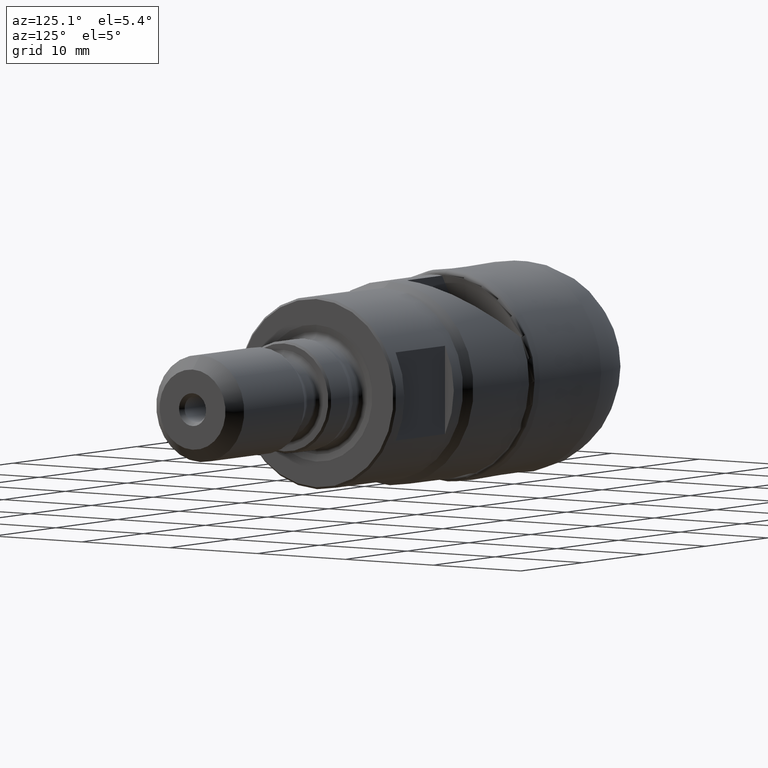
[diagram: clean part render]
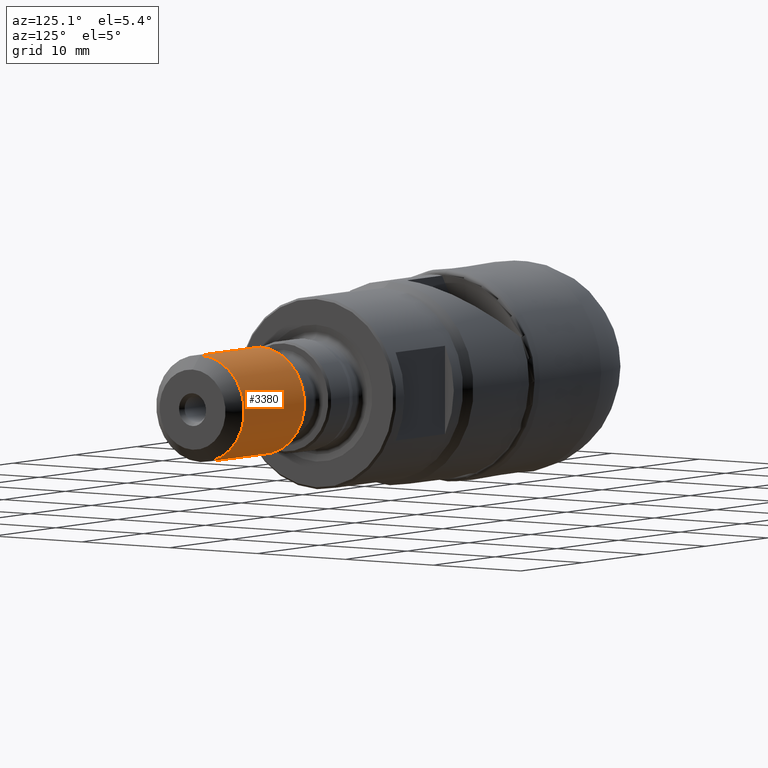
[diagram: same view with one face highlighted and labeled with its STEP entity id]
A machine part, auxiliary view. The second image highlights one B-rep face of the part: STEP entity #3380.
In plain terms, the highlighted cylindrical surface (partial cylindrical patch) has radius 5 mm, axis along (-1, 0, 0).
Its self-contained STEP definition (entity closure, byte-faithful):
#129 = EDGE_CURVE ( 'NONE', #3903, #2647, #544, .T. ) ;
#171 = CYLINDRICAL_SURFACE ( 'NONE', #3112, 5.000000000000000000 ) ;
#215 = CARTESIAN_POINT ( 'NONE',  ( -4.762142644779060241, 0.0000000000000000000, 0.0000000000000000000 ) ) ;
#443 = AXIS2_PLACEMENT_3D ( 'NONE', #2077, #3501, #1762 ) ;
#544 = LINE ( 'NONE', #2957, #2282 ) ;
#557 = VERTEX_POINT ( 'NONE', #1967 ) ;
#577 = CARTESIAN_POINT ( 'NONE',  ( 51.03724643000000327, 0.0000000000000000000, 0.0000000000000000000 ) ) ;
#934 = FACE_OUTER_BOUND ( 'NONE', #2771, .T. ) ;
#941 = ORIENTED_EDGE ( 'NONE', *, *, #4081, .F. ) ;
#950 = AXIS2_PLACEMENT_3D ( 'NONE', #577, #1069, #1440 ) ;
#1069 = DIRECTION ( 'NONE',  ( -1.000000000000000000, 0.0000000000000000000, 0.0000000000000000000 ) ) ;
#1259 = CIRCLE ( 'NONE', #443, 5.000000000000000000 ) ;
#1440 = DIRECTION ( 'NONE',  ( 0.0000000000000000000, 0.0000000000000000000, 1.000000000000000000 ) ) ;
#1665 = ORIENTED_EDGE ( 'NONE', *, *, #2819, .T. ) ;
#1762 = DIRECTION ( 'NONE',  ( 0.0000000000000000000, 0.0000000000000000000, 1.000000000000000000 ) ) ;
#1967 = CARTESIAN_POINT ( 'NONE',  ( 51.03724643000000327, 0.0000000000000000000, -5.000000000000000000 ) ) ;
#1986 = EDGE_CURVE ( 'NONE', #3903, #3278, #1259, .T. ) ;
#2077 = CARTESIAN_POINT ( 'NONE',  ( 60.78724642999999617, 0.0000000000000000000, 0.0000000000000000000 ) ) ;
#2282 = VECTOR ( 'NONE', #3676, 1000.000000000000000 ) ;
#2391 = CARTESIAN_POINT ( 'NONE',  ( 51.03724643000000327, 6.123233995736766282E-16, 5.000000000000000000 ) ) ;
#2458 = VECTOR ( 'NONE', #4447, 1000.000000000000000 ) ;
#2647 = VERTEX_POINT ( 'NONE', #2391 ) ;
#2716 = ORIENTED_EDGE ( 'NONE', *, *, #129, .F. ) ;
#2771 = EDGE_LOOP ( 'NONE', ( #4263, #1665, #941, #2716 ) ) ;
#2795 = CARTESIAN_POINT ( 'NONE',  ( 60.78724642999999617, 0.0000000000000000000, 5.000000000000000000 ) ) ;
#2815 = CIRCLE ( 'NONE', #950, 5.000000000000000000 ) ;
#2819 = EDGE_CURVE ( 'NONE', #3278, #557, #4073, .T. ) ;
#2907 = CARTESIAN_POINT ( 'NONE',  ( -4.762142644779060241, 6.123233995736766282E-16, -5.000000000000000000 ) ) ;
#2957 = CARTESIAN_POINT ( 'NONE',  ( -4.762142644779060241, 0.0000000000000000000, 5.000000000000000000 ) ) ;
#3074 = DIRECTION ( 'NONE',  ( 0.0000000000000000000, 0.0000000000000000000, 1.000000000000000000 ) ) ;
#3095 = DIRECTION ( 'NONE',  ( -1.000000000000000000, 0.0000000000000000000, 0.0000000000000000000 ) ) ;
#3112 = AXIS2_PLACEMENT_3D ( 'NONE', #215, #3095, #3074 ) ;
#3278 = VERTEX_POINT ( 'NONE', #4564 ) ;
#3380 = ADVANCED_FACE ( 'NONE', ( #934 ), #171, .T. ) ;
#3501 = DIRECTION ( 'NONE',  ( -1.000000000000000000, 0.0000000000000000000, 0.0000000000000000000 ) ) ;
#3676 = DIRECTION ( 'NONE',  ( -1.000000000000000000, 0.0000000000000000000, 0.0000000000000000000 ) ) ;
#3903 = VERTEX_POINT ( 'NONE', #2795 ) ;
#4073 = LINE ( 'NONE', #2907, #2458 ) ;
#4081 = EDGE_CURVE ( 'NONE', #2647, #557, #2815, .T. ) ;
#4263 = ORIENTED_EDGE ( 'NONE', *, *, #1986, .T. ) ;
#4447 = DIRECTION ( 'NONE',  ( -1.000000000000000000, 0.0000000000000000000, 0.0000000000000000000 ) ) ;
#4564 = CARTESIAN_POINT ( 'NONE',  ( 60.78724642999999617, 6.123233995736766282E-16, -5.000000000000000000 ) ) ;